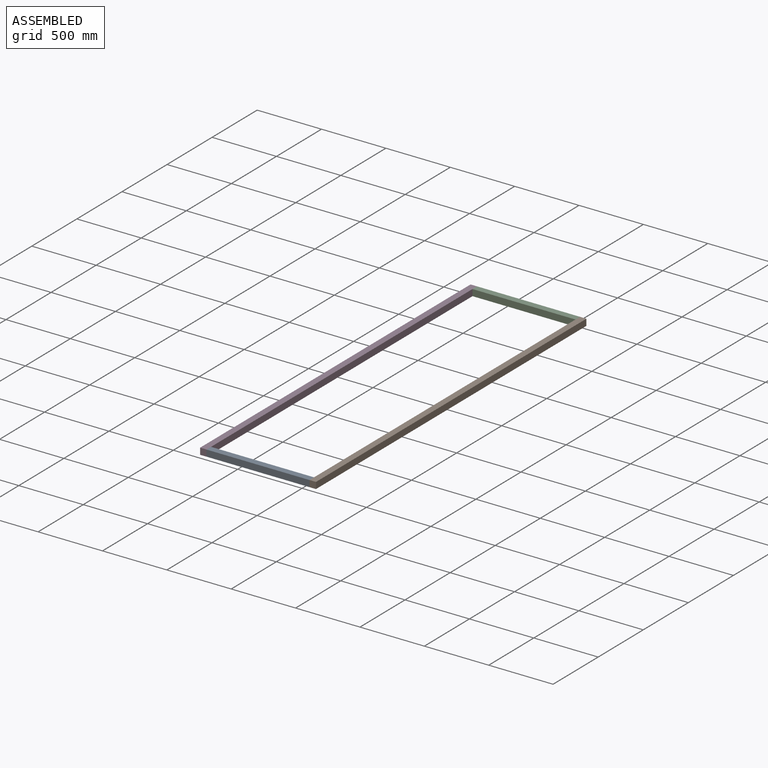
[diagram: assembled view]
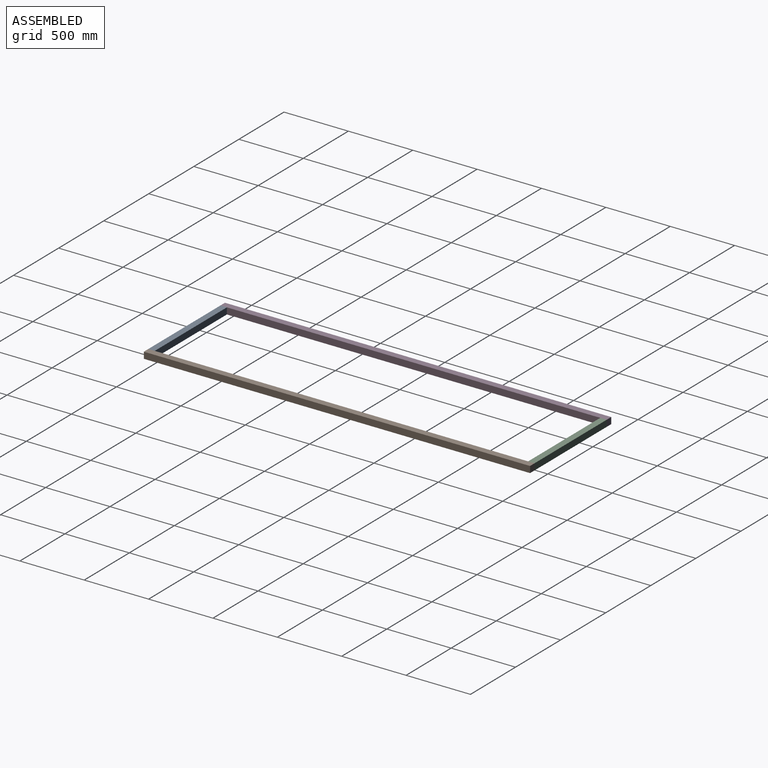
[diagram: assembled view, second angle]
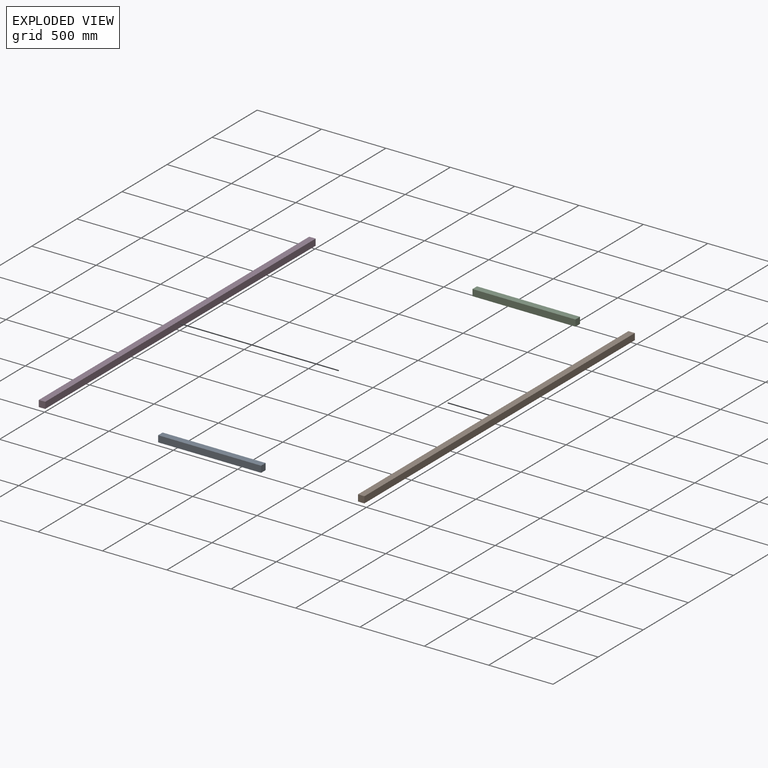
[diagram: exploded view]
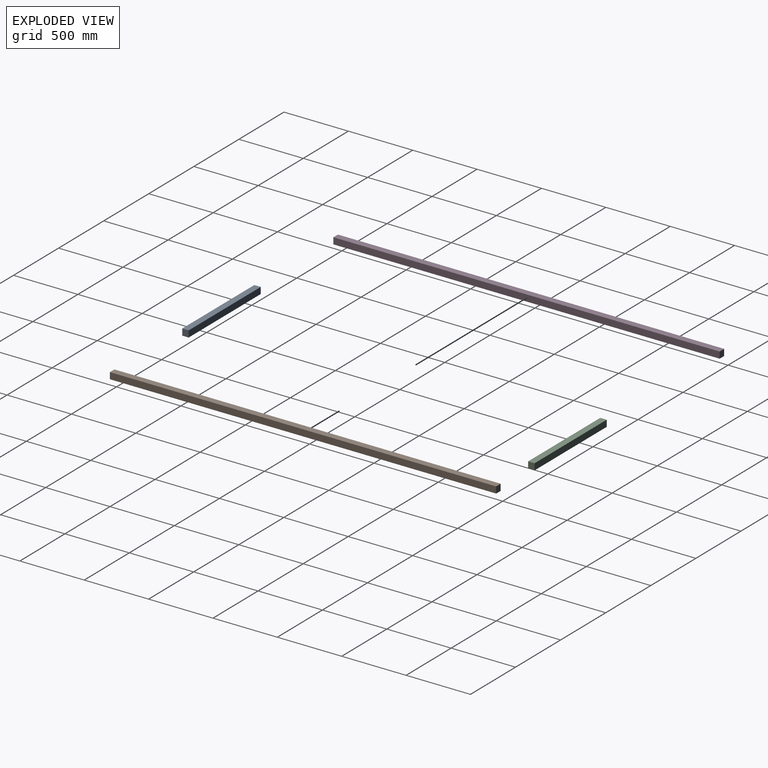
[diagram: exploded view, second angle]
ASSEMBLY  parts=4 mates=3
PART A: 6 faces, bbox 50x50x800 mm
  f0: plane 800x50mm, normal (0,1,0), area 40000mm2, adj f1,f3,f4,f5
  f1: plane 800x50mm, normal (-1,0,0), area 40000mm2, adj f0,f2,f4,f5
  f2: plane 800x50mm, normal (0,-1,0), area 40000mm2, adj f1,f3,f4,f5
  f3: plane 800x50mm, normal (1,0,0), area 40000mm2, adj f0,f2,f4,f5
  f4: plane 50x50mm, normal (0,0,1), area 2500mm2, adj f0,f1,f2,f3
  f5: plane 50x50mm, normal (0,0,-1), area 2500mm2, adj f0,f1,f2,f3
PART B: 6 faces, bbox 50x3000x50 mm
  f0: plane 3000x50mm, normal (0,0,1), area 150000mm2, adj f1,f3,f4,f5
  f1: plane 3000x50mm, normal (-1,0,0), area 150000mm2, adj f0,f2,f4,f5
  f2: plane 3000x50mm, normal (0,0,-1), area 150000mm2, adj f1,f3,f4,f5
  f3: plane 3000x50mm, normal (1,0,0), area 150000mm2, adj f0,f2,f4,f5
  f4: plane 50x50mm, normal (0,-1,0), area 2500mm2, adj f0,f1,f2,f3
  f5: plane 50x50mm, normal (0,1,0), area 2500mm2, adj f0,f1,f2,f3
PART C: same geometry as A
PART D: same geometry as B
PLACE A rot(axis=(0,1,0),90deg) t=(-312.89,-1516.49,-159.32)mm
PLACE B t=(112.11,-41.49,-159.32)mm
PLACE C rot(axis=(0,-1,0),90deg) t=(-312.89,1433.51,-159.32)mm
PLACE D t=(-737.89,-41.49,-159.32)mm
MATE fastened D.f3 <-> A.f5  axis (1,0,0) through (-712.89,-1541.49,-134.32)mm
MATE fastened A.f4 <-> B.f1  axis (1,0,0) through (87.11,-1541.49,-184.32)mm
MATE fastened C.f4 <-> D.f3  axis (-1,0,0) through (-712.89,1458.51,-184.32)mm
